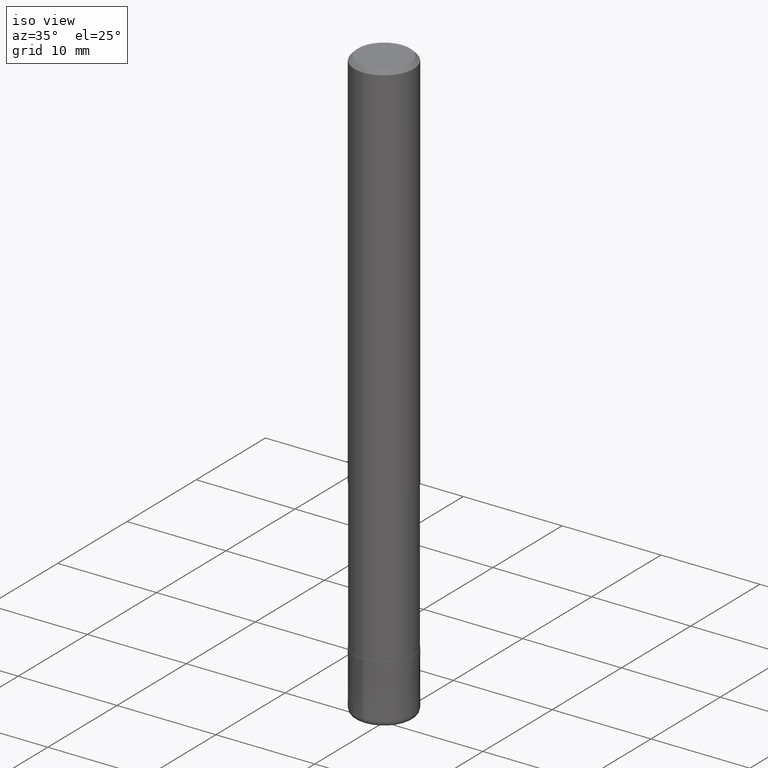
[diagram: clean part render]
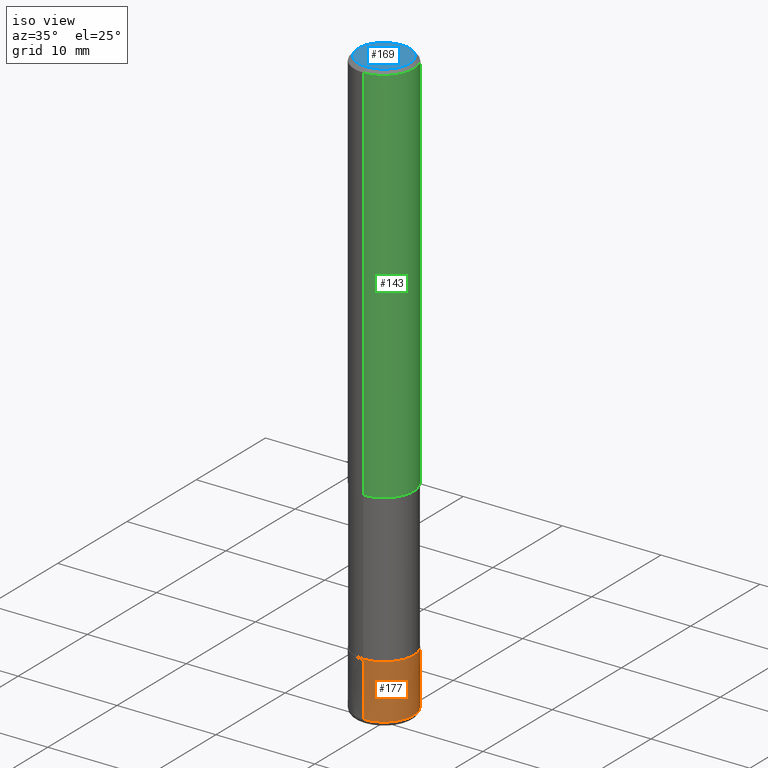
[diagram: same view with three faces highlighted in distinct colors, each labeled with its STEP entity id]
A machine part, iso view with three faces highlighted in distinct colors.
Their STEP definitions:

[orange] entity #177 — the highlighted conical surface has half-angle 0.001 deg.
#141=EDGE_CURVE('',#283,#281,#332,.T.);
#177=ADVANCED_FACE('',(#376),#377,.T.);
#215=EDGE_CURVE('',#281,#257,#420,.T.);
#225=EDGE_CURVE('',#283,#265,#431,.T.);
#257=VERTEX_POINT('',#465);
#265=VERTEX_POINT('',#473);
#267=EDGE_CURVE('',#257,#265,#475,.T.);
#281=VERTEX_POINT('',#492);
#283=VERTEX_POINT('',#494);
#332=LINE('',#540,#541);
#376=FACE_OUTER_BOUND('',#594,.T.);
#377=CONICAL_SURFACE('',#595,2.99995,1.8181818179853E-005);
#420=CIRCLE('',#646,3.0);
#431=CIRCLE('',#662,2.9999);
#465=CARTESIAN_POINT('',(3.67381906146713E-016,-3.0,-59.5));
#473=CARTESIAN_POINT('',(3.67369660083175E-016,-2.9999,-54.0));
#475=LINE('',#720,#721);
#492=CARTESIAN_POINT('',(0.0,3.0,-59.5));
#494=CARTESIAN_POINT('',(0.0,2.9999,-54.0));
#540=CARTESIAN_POINT('',(-3.67375783114944E-016,2.99995,-56.75));
#541=VECTOR('',#776,1.0);
#594=EDGE_LOOP('',(#844,#845,#846,#847));
#595=AXIS2_PLACEMENT_3D('',#848,#849,#850);
#646=AXIS2_PLACEMENT_3D('',#908,#909,#910);
#662=AXIS2_PLACEMENT_3D('',#926,#927,#928);
#720=CARTESIAN_POINT('',(3.67375783114944E-016,-2.99995,-56.75));
#721=VECTOR('',#973,1.0);
#776=DIRECTION('',(-2.22655700658645E-021,1.81818181788513E-005,-0.999999999834711));
#844=ORIENTED_EDGE('',*,*,#141,.F.);
#845=ORIENTED_EDGE('',*,*,#225,.T.);
#846=ORIENTED_EDGE('',*,*,#267,.F.);
#847=ORIENTED_EDGE('',*,*,#215,.F.);
#848=CARTESIAN_POINT('',(0.0,0.0,-56.75));
#849=DIRECTION('',(0.0,-0.0,-1.0));
#850=DIRECTION('',(0.0,1.0,0.0));
#908=CARTESIAN_POINT('',(0.0,0.0,-59.5));
#909=DIRECTION('',(0.0,0.0,-1.0));
#910=DIRECTION('',(0.0,1.0,0.0));
#926=CARTESIAN_POINT('',(0.0,0.0,-54.0));
#927=DIRECTION('',(0.0,0.0,-1.0));
#928=DIRECTION('',(0.0,1.0,0.0));
#973=DIRECTION('',(-2.22655700658645E-021,1.81818181788513E-005,0.999999999834711));

[blue] entity #169 — the highlighted planar face has unit normal (-0, 0, 1).
#151=EDGE_CURVE('',#233,#235,#343,.T.);
#169=ADVANCED_FACE('',(#366),#367,.T.);
#199=EDGE_CURVE('',#235,#233,#400,.T.);
#233=VERTEX_POINT('',#439);
#235=VERTEX_POINT('',#441);
#343=CIRCLE('',#555,2.6);
#366=FACE_OUTER_BOUND('',#583,.T.);
#367=PLANE('',#584);
#400=CIRCLE('',#622,2.6);
#439=CARTESIAN_POINT('',(0.0,2.6,0.0));
#441=CARTESIAN_POINT('',(3.18397651993818E-016,-2.6,0.0));
#555=AXIS2_PLACEMENT_3D('',#786,#787,#788);
#583=EDGE_LOOP('',(#827,#828));
#584=AXIS2_PLACEMENT_3D('',#829,#830,#831);
#622=AXIS2_PLACEMENT_3D('',#872,#873,#874);
#786=CARTESIAN_POINT('',(0.0,0.0,0.0));
#787=DIRECTION('',(0.0,0.0,-1.0));
#788=DIRECTION('',(0.0,1.0,0.0));
#827=ORIENTED_EDGE('',*,*,#151,.F.);
#828=ORIENTED_EDGE('',*,*,#199,.F.);
#829=CARTESIAN_POINT('',(0.0,1.3,0.0));
#830=DIRECTION('',(-0.0,0.0,1.0));
#831=DIRECTION('',(0.0,-1.0,0.0));
#872=CARTESIAN_POINT('',(0.0,0.0,0.0));
#873=DIRECTION('',(0.0,0.0,-1.0));
#874=DIRECTION('',(0.0,1.0,0.0));

[green] entity #143 — the highlighted cylindrical surface (edge-blend (fillet) strip) has radius 3 mm, axis along (-0, -0, 1).
#121=VERTEX_POINT('',#310);
#143=ADVANCED_FACE('',(#334),#335,.T.);
#167=EDGE_CURVE('',#237,#201,#364,.T.);
#175=VERTEX_POINT('',#374);
#201=VERTEX_POINT('',#402);
#217=EDGE_CURVE('',#201,#175,#422,.T.);
#227=EDGE_CURVE('',#175,#121,#433,.T.);
#231=EDGE_CURVE('',#237,#121,#437,.T.);
#237=VERTEX_POINT('',#443);
#310=CARTESIAN_POINT('',(3.67381906146713E-016,-3.0,-0.399999999999999));
#334=FACE_OUTER_BOUND('',#543,.T.);
#335=CYLINDRICAL_SURFACE('',#544,3.0);
#364=LINE('',#580,#581);
#374=CARTESIAN_POINT('',(3.67381906146713E-016,-3.0,-39.0));
#402=CARTESIAN_POINT('',(0.0,3.0,-39.0));
#422=CIRCLE('',#649,3.0);
#433=LINE('',#665,#666);
#437=CIRCLE('',#672,3.0);
#443=CARTESIAN_POINT('',(0.0,3.0,-0.399999999999999));
#543=EDGE_LOOP('',(#778,#779,#780,#781));
#544=AXIS2_PLACEMENT_3D('',#782,#783,#784);
#580=CARTESIAN_POINT('',(-3.67381906146713E-016,3.0,-19.7));
#581=VECTOR('',#825,1.0);
#649=AXIS2_PLACEMENT_3D('',#911,#912,#913);
#665=CARTESIAN_POINT('',(3.67381906146713E-016,-3.0,-19.7));
#666=VECTOR('',#929,1.0);
#672=AXIS2_PLACEMENT_3D('',#933,#934,#935);
#778=ORIENTED_EDGE('',*,*,#167,.F.);
#779=ORIENTED_EDGE('',*,*,#231,.T.);
#780=ORIENTED_EDGE('',*,*,#227,.F.);
#781=ORIENTED_EDGE('',*,*,#217,.F.);
#782=CARTESIAN_POINT('',(0.0,0.0,-19.7));
#783=DIRECTION('',(-0.0,-0.0,1.0));
#784=DIRECTION('',(0.0,1.0,0.0));
#825=DIRECTION('',(0.0,0.0,-1.0));
#911=CARTESIAN_POINT('',(0.0,0.0,-39.0));
#912=DIRECTION('',(0.0,0.0,-1.0));
#913=DIRECTION('',(0.0,1.0,0.0));
#929=DIRECTION('',(-0.0,-0.0,1.0));
#933=CARTESIAN_POINT('',(0.0,0.0,-0.399999999999999));
#934=DIRECTION('',(0.0,0.0,-1.0));
#935=DIRECTION('',(0.0,1.0,0.0));